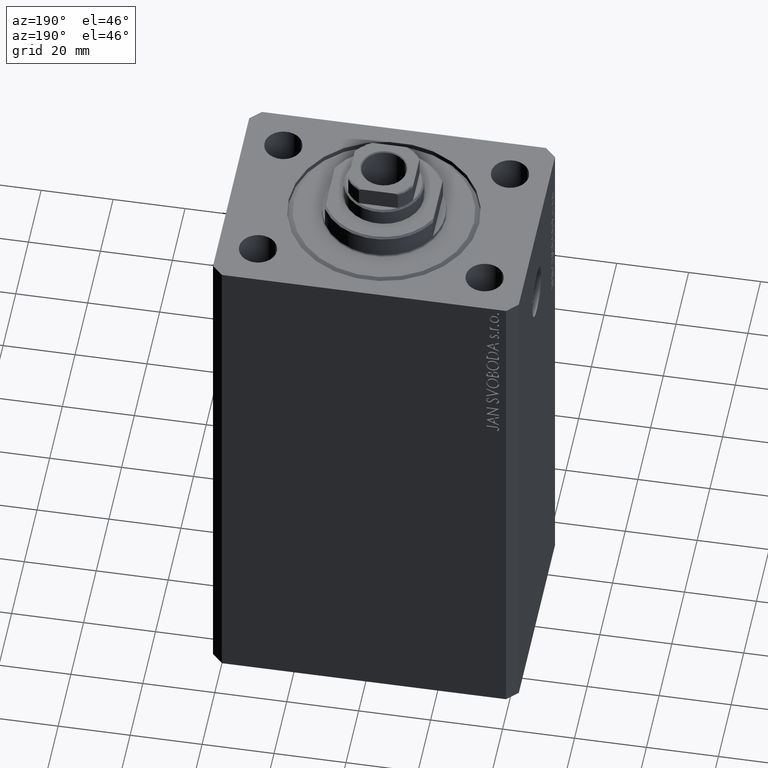
[diagram: clean part render]
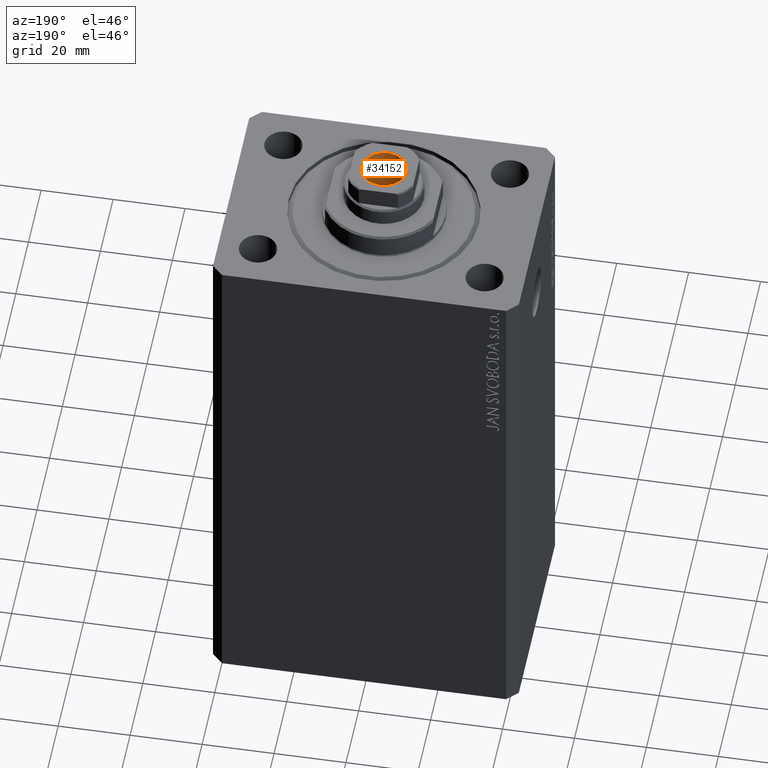
[diagram: same view with one face highlighted and labeled with its STEP entity id]
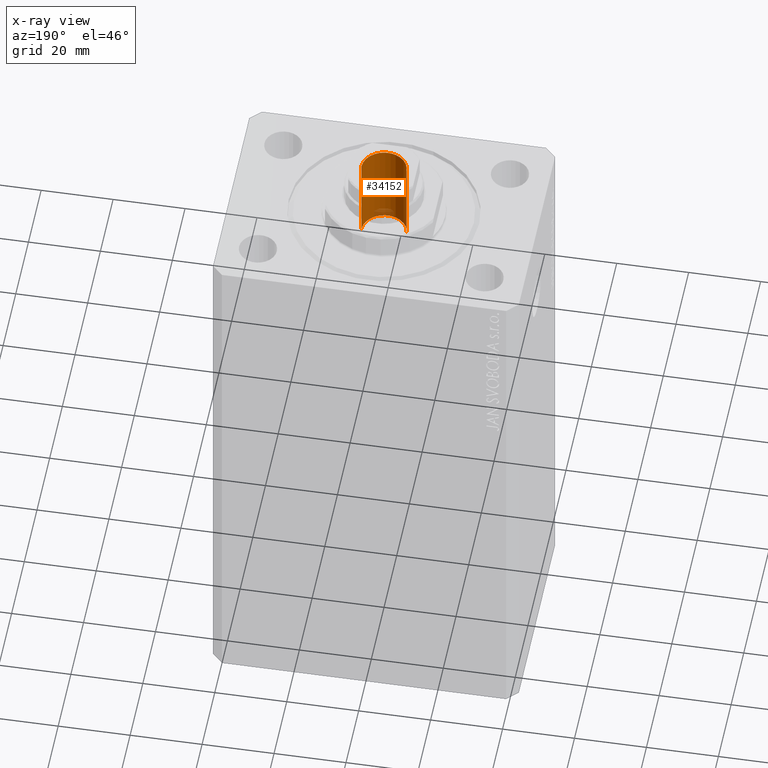
[diagram: x-ray of the same camera — body ghosted, the highlighted face saturated]
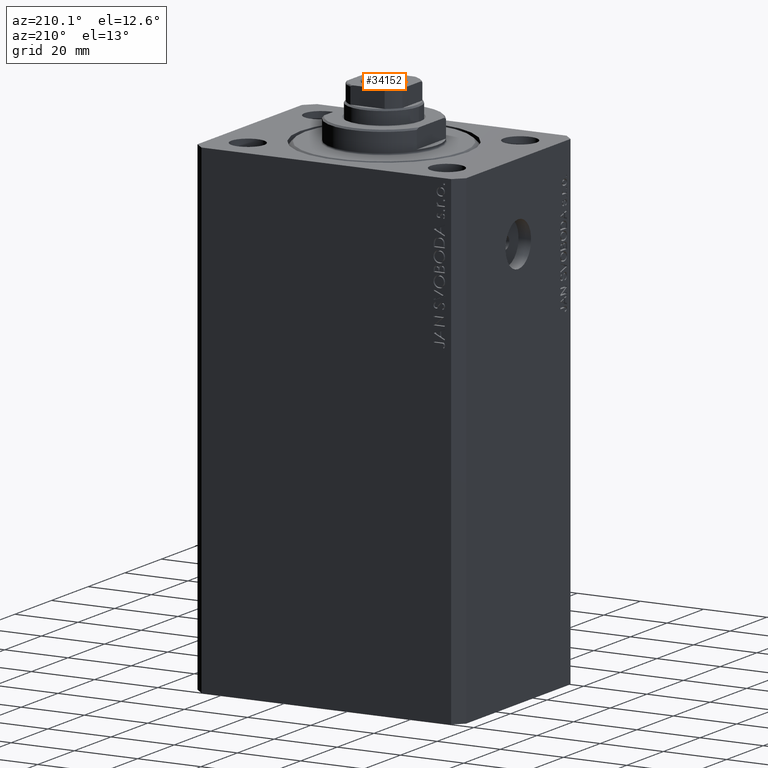
[diagram: same view with one face highlighted and labeled with its STEP entity id]
A machine part, auxiliary view. The second image highlights one B-rep face of the part: STEP entity #34152.
The next image is the same camera in x-ray: the body ghosted, the highlighted face saturated — about 5% of this face is hidden behind the body in this view.
A second angle (auxiliary view) of the same face is appended — the face is thin or edge-on in the first view.
In plain terms, the highlighted cylindrical surface (edge-blend (fillet) strip) has radius 6.25 mm, axis along (0, 0, 1).
Its self-contained STEP definition (entity closure, byte-faithful):
#73 = AXIS2_PLACEMENT_3D ( 'NONE', #33175, #16253, #37006 ) ;
#843 = LINE ( 'NONE', #14590, #25714 ) ;
#2004 = CARTESIAN_POINT ( 'NONE',  ( 0.000000000000000000, 0.000000000000000000, 158.6000000000000227 ) ) ;
#2537 = EDGE_CURVE ( 'NONE', #21226, #29272, #11711, .T. ) ;
#5378 = DIRECTION ( 'NONE',  ( 1.000000000000000000, 0.000000000000000000, 0.000000000000000000 ) ) ;
#5577 = VECTOR ( 'NONE', #23809, 1000.000000000000000 ) ;
#6331 = DIRECTION ( 'NONE',  ( 0.000000000000000000, 0.000000000000000000, 1.000000000000000000 ) ) ;
#6421 = AXIS2_PLACEMENT_3D ( 'NONE', #2004, #43484, #5378 ) ;
#6566 = ORIENTED_EDGE ( 'NONE', *, *, #24059, .F. ) ;
#6872 = EDGE_CURVE ( 'NONE', #25789, #21226, #41390, .T. ) ;
#8188 = CARTESIAN_POINT ( 'NONE',  ( -6.249999999999995559, 7.654042494670950704E-16, 158.3000000000000114 ) ) ;
#9529 = AXIS2_PLACEMENT_3D ( 'NONE', #26201, #6331, #40396 ) ;
#10847 = CIRCLE ( 'NONE', #73, 6.249999999999993783 ) ;
#11711 = CIRCLE ( 'NONE', #9529, 6.249999999999995559 ) ;
#14590 = CARTESIAN_POINT ( 'NONE',  ( 6.249999999999995559, 0.000000000000000000, 158.6000000000000227 ) ) ;
#14935 = CARTESIAN_POINT ( 'NONE',  ( -6.249999999999993783, 7.654042494670949718E-16, 133.6000000000000227 ) ) ;
#16253 = DIRECTION ( 'NONE',  ( -0.000000000000000000, -0.000000000000000000, 1.000000000000000000 ) ) ;
#20641 = CARTESIAN_POINT ( 'NONE',  ( -6.249999999999995559, 7.654042494670950704E-16, 158.6000000000000227 ) ) ;
#21226 = VERTEX_POINT ( 'NONE', #8188 ) ;
#21589 = DIRECTION ( 'NONE',  ( -0.000000000000000000, -0.000000000000000000, 1.000000000000000000 ) ) ;
#23809 = DIRECTION ( 'NONE',  ( -0.000000000000000000, -0.000000000000000000, 1.000000000000000000 ) ) ;
#24059 = EDGE_CURVE ( 'NONE', #26082, #29272, #843, .T. ) ;
#25714 = VECTOR ( 'NONE', #21589, 1000.000000000000000 ) ;
#25789 = VERTEX_POINT ( 'NONE', #14935 ) ;
#26082 = VERTEX_POINT ( 'NONE', #28418 ) ;
#26201 = CARTESIAN_POINT ( 'NONE',  ( 0.000000000000000000, 0.000000000000000000, 158.3000000000000114 ) ) ;
#26585 = CARTESIAN_POINT ( 'NONE',  ( 6.249999999999995559, 0.000000000000000000, 158.3000000000000114 ) ) ;
#28418 = CARTESIAN_POINT ( 'NONE',  ( 6.249999999999993783, 0.000000000000000000, 133.6000000000000227 ) ) ;
#29272 = VERTEX_POINT ( 'NONE', #26585 ) ;
#31318 = ORIENTED_EDGE ( 'NONE', *, *, #6872, .T. ) ;
#33128 = CYLINDRICAL_SURFACE ( 'NONE', #6421, 6.249999999999995559 ) ;
#33175 = CARTESIAN_POINT ( 'NONE',  ( 0.000000000000000000, 0.000000000000000000, 133.6000000000000227 ) ) ;
#34152 = ADVANCED_FACE ( 'NONE', ( #43029 ), #33128, .F. ) ;
#36579 = ORIENTED_EDGE ( 'NONE', *, *, #38808, .F. ) ;
#36883 = EDGE_LOOP ( 'NONE', ( #36579, #31318, #39570, #6566 ) ) ;
#37006 = DIRECTION ( 'NONE',  ( 1.000000000000000000, 0.000000000000000000, 0.000000000000000000 ) ) ;
#38808 = EDGE_CURVE ( 'NONE', #25789, #26082, #10847, .T. ) ;
#39570 = ORIENTED_EDGE ( 'NONE', *, *, #2537, .T. ) ;
#40396 = DIRECTION ( 'NONE',  ( 1.000000000000000000, 0.000000000000000000, 0.000000000000000000 ) ) ;
#41390 = LINE ( 'NONE', #20641, #5577 ) ;
#43029 = FACE_OUTER_BOUND ( 'NONE', #36883, .T. ) ;
#43484 = DIRECTION ( 'NONE',  ( -0.000000000000000000, -0.000000000000000000, 1.000000000000000000 ) ) ;